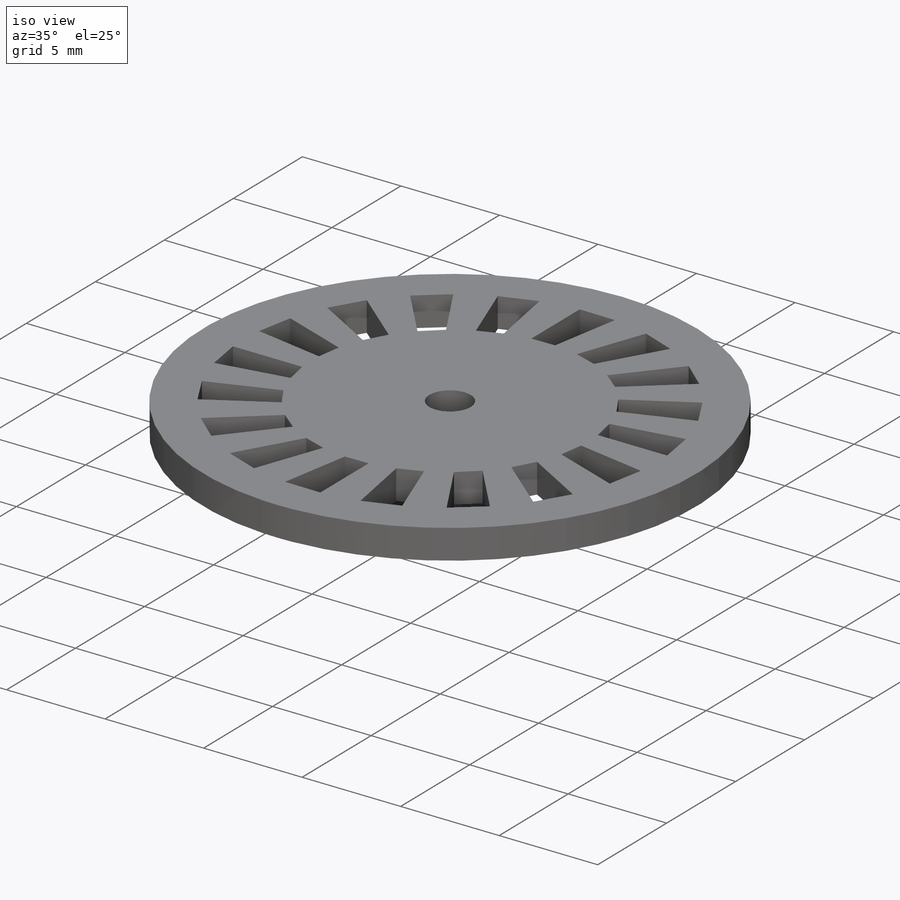
[diagram: iso view]
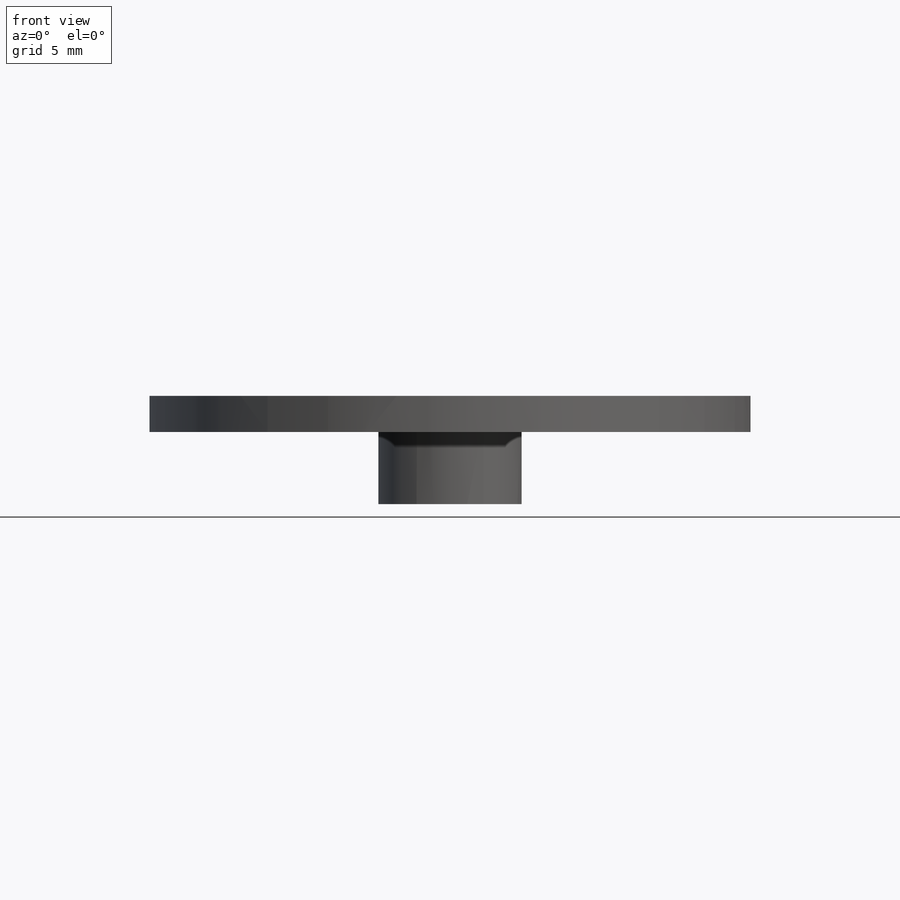
[diagram: front view]
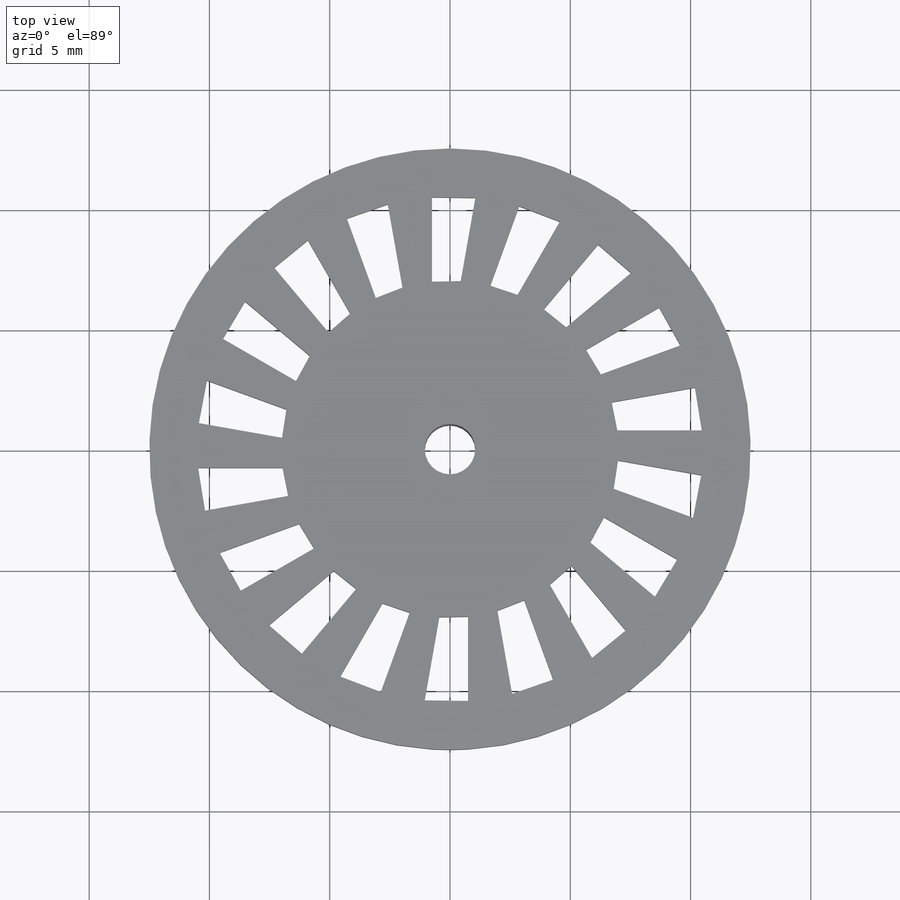
[diagram: top view]
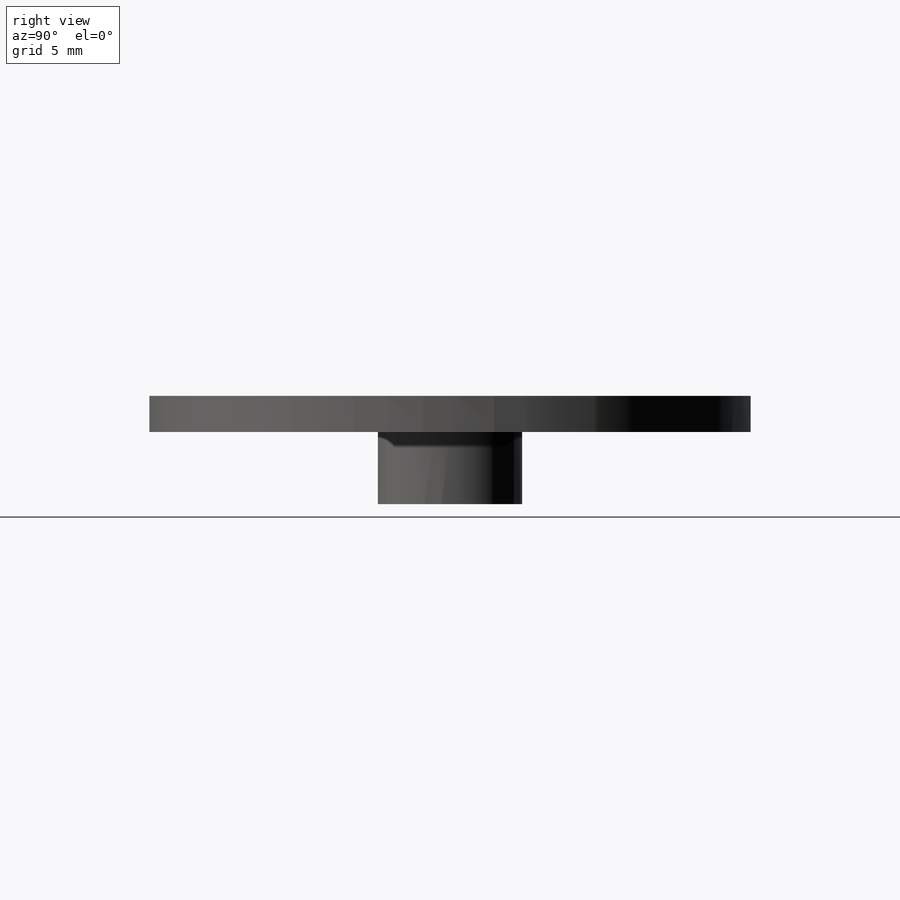
[diagram: right view]
SOLIDWORKS PART (.sldprt)
format: sldprt  version: not decoded by parser v0  size: 273,920 bytes
history: native  units: mm
features: sketch x5, cut_extrude x3, extrude x2, material x1, pattern_circular x1 (+12 scaffold rows collapsed)
feature tree (24):
  scaffold x12  (default folders/planes/origin — collapsed)
  material  "재질 <지정안함>"
  sketch  "스케치1"  dims[D1=~30.735528mm]
  extrude  "보스-돌출1"  Depth=1.5mm
  sketch  "스케치2"  dims[c1.D3=14.0mm c1.D4=21.0mm c1.D1=7.0mm c1.D2=4.0mm c2.D3=1.0mm c2.D4=0.5mm c2.D5=0.0mm c2.D6=~4.085617deg c2.D1=5.0deg c2.D2=5.0deg c3.D1=0.74mm c3.D2=5.0deg c3.D3=~8.765734deg c4.D1=0.75mm c4.D2=0.75mm c4.D5=10.0deg c5.D2=10.0deg c5.D5=0.775mm]
  cut_extrude  "컷-돌출1"  Depth=2mm
  sketch  "스케치3"  dims[D1=2.1mm]
  cut_extrude  "컷-돌출2"  Depth=22mm
  sketch  "스케치4"  dims[D1=6.0mm]
  extrude  "보스-돌출2"  Depth=3mm
  pattern_circular  "원형 패턴1"  Count=18 Angle=20deg
  sketch  "스케치5"  dims[D1=2.1mm]
  cut_extrude  "컷-돌출3"  Depth=23mm
decode coverage: 11 of 11 modeling features carry decoded parameters
note: ~ marks probable driven/reference dimensions
note: suppression state not decoded; provenance and decode notes live in map.json
